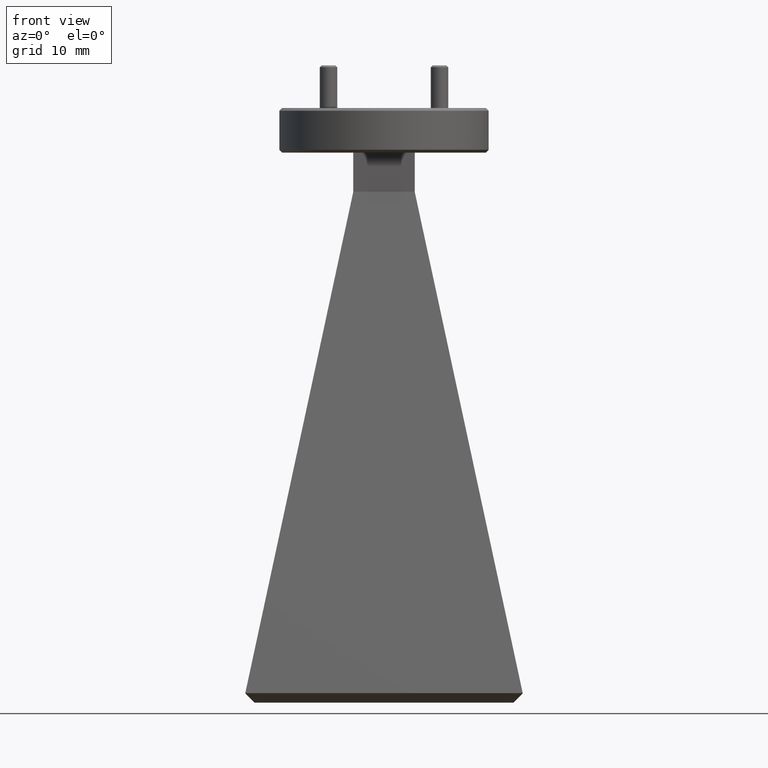
[diagram: clean part render]
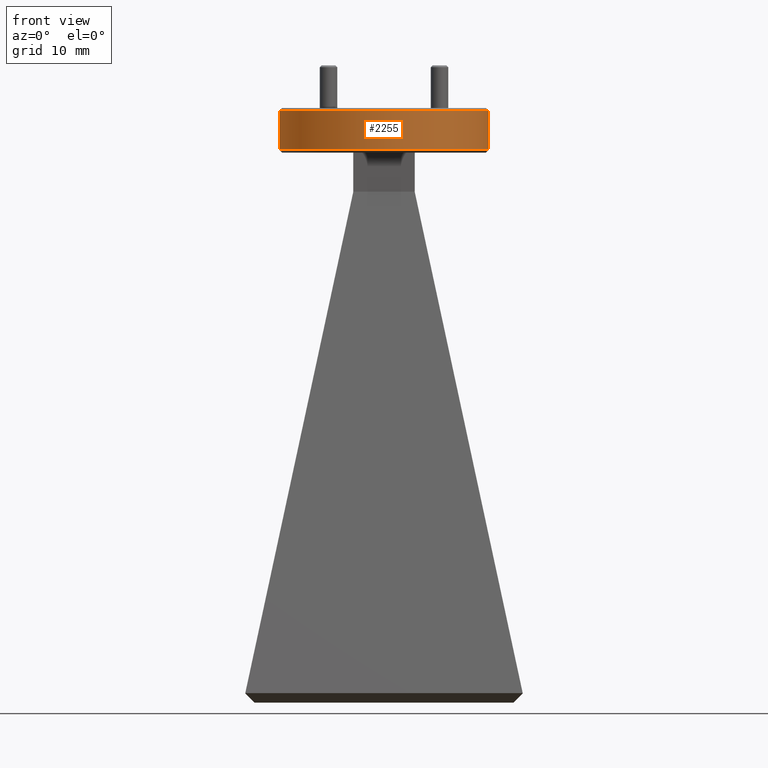
[diagram: same view with one face highlighted and labeled with its STEP entity id]
A machine part, front view. The second image highlights one B-rep face of the part: STEP entity #2255.
In plain terms, the highlighted cylindrical surface (partial cylindrical patch) has radius 9.525 mm, axis along (0, 0, 1).
Its self-contained STEP definition (entity closure, byte-faithful):
#75 = ORIENTED_EDGE ( 'NONE', *, *, #618, .T. ) ;
#230 = DIRECTION ( 'NONE',  ( -0.000000000000000000, -0.000000000000000000, 1.000000000000000000 ) ) ;
#233 = CARTESIAN_POINT ( 'NONE',  ( -0.3750000000000000555, 4.592425496802575451E-17, -0.1500000000000000500 ) ) ;
#311 = ORIENTED_EDGE ( 'NONE', *, *, #738, .T. ) ;
#318 = CARTESIAN_POINT ( 'NONE',  ( 0.000000000000000000, 0.000000000000000000, -0.009999999999999415606 ) ) ;
#331 = CARTESIAN_POINT ( 'NONE',  ( 0.3750000000000000555, 0.000000000000000000, -0.1600000000000000033 ) ) ;
#343 = AXIS2_PLACEMENT_3D ( 'NONE', #318, #1113, #727 ) ;
#508 = AXIS2_PLACEMENT_3D ( 'NONE', #1461, #230, #832 ) ;
#618 = EDGE_CURVE ( 'NONE', #997, #1621, #2436, .T. ) ;
#641 = VERTEX_POINT ( 'NONE', #1666 ) ;
#726 = EDGE_LOOP ( 'NONE', ( #1611, #75, #914, #311 ) ) ;
#727 = DIRECTION ( 'NONE',  ( 1.000000000000000000, 0.000000000000000000, 0.000000000000000000 ) ) ;
#738 = EDGE_CURVE ( 'NONE', #2401, #641, #1598, .T. ) ;
#832 = DIRECTION ( 'NONE',  ( 1.000000000000000000, 0.000000000000000000, 0.000000000000000000 ) ) ;
#914 = ORIENTED_EDGE ( 'NONE', *, *, #2017, .T. ) ;
#988 = CYLINDRICAL_SURFACE ( 'NONE', #1065, 0.3750000000000000555 ) ;
#997 = VERTEX_POINT ( 'NONE', #233 ) ;
#1065 = AXIS2_PLACEMENT_3D ( 'NONE', #2399, #2199, #1392 ) ;
#1113 = DIRECTION ( 'NONE',  ( 0.000000000000000000, 0.000000000000000000, -1.000000000000000000 ) ) ;
#1232 = CARTESIAN_POINT ( 'NONE',  ( -0.3750000000000000555, 4.592425496802575451E-17, -0.1600000000000000033 ) ) ;
#1265 = VECTOR ( 'NONE', #2329, 39.37007874015748143 ) ;
#1385 = VECTOR ( 'NONE', #1859, 39.37007874015748143 ) ;
#1392 = DIRECTION ( 'NONE',  ( 1.000000000000000000, 0.000000000000000000, 0.000000000000000000 ) ) ;
#1461 = CARTESIAN_POINT ( 'NONE',  ( 0.000000000000000000, 0.000000000000000000, -0.1500000000000000500 ) ) ;
#1598 = CIRCLE ( 'NONE', #343, 0.3750000000000000555 ) ;
#1611 = ORIENTED_EDGE ( 'NONE', *, *, #1957, .F. ) ;
#1621 = VERTEX_POINT ( 'NONE', #2108 ) ;
#1666 = CARTESIAN_POINT ( 'NONE',  ( -0.3750000000000000555, 4.592425496802575451E-17, -0.009999999999999415606 ) ) ;
#1675 = FACE_OUTER_BOUND ( 'NONE', #726, .T. ) ;
#1859 = DIRECTION ( 'NONE',  ( 0.000000000000000000, 0.000000000000000000, 1.000000000000000000 ) ) ;
#1957 = EDGE_CURVE ( 'NONE', #997, #641, #2407, .T. ) ;
#2017 = EDGE_CURVE ( 'NONE', #1621, #2401, #2483, .T. ) ;
#2108 = CARTESIAN_POINT ( 'NONE',  ( 0.3750000000000000555, 0.000000000000000000, -0.1500000000000000500 ) ) ;
#2199 = DIRECTION ( 'NONE',  ( 0.000000000000000000, 0.000000000000000000, 1.000000000000000000 ) ) ;
#2206 = CARTESIAN_POINT ( 'NONE',  ( 0.3750000000000000555, 0.000000000000000000, -0.009999999999999415606 ) ) ;
#2255 = ADVANCED_FACE ( 'NONE', ( #1675 ), #988, .T. ) ;
#2329 = DIRECTION ( 'NONE',  ( 0.000000000000000000, 0.000000000000000000, 1.000000000000000000 ) ) ;
#2399 = CARTESIAN_POINT ( 'NONE',  ( 0.000000000000000000, 0.000000000000000000, -0.1600000000000000033 ) ) ;
#2401 = VERTEX_POINT ( 'NONE', #2206 ) ;
#2407 = LINE ( 'NONE', #1232, #1385 ) ;
#2436 = CIRCLE ( 'NONE', #508, 0.3750000000000000555 ) ;
#2483 = LINE ( 'NONE', #331, #1265 ) ;